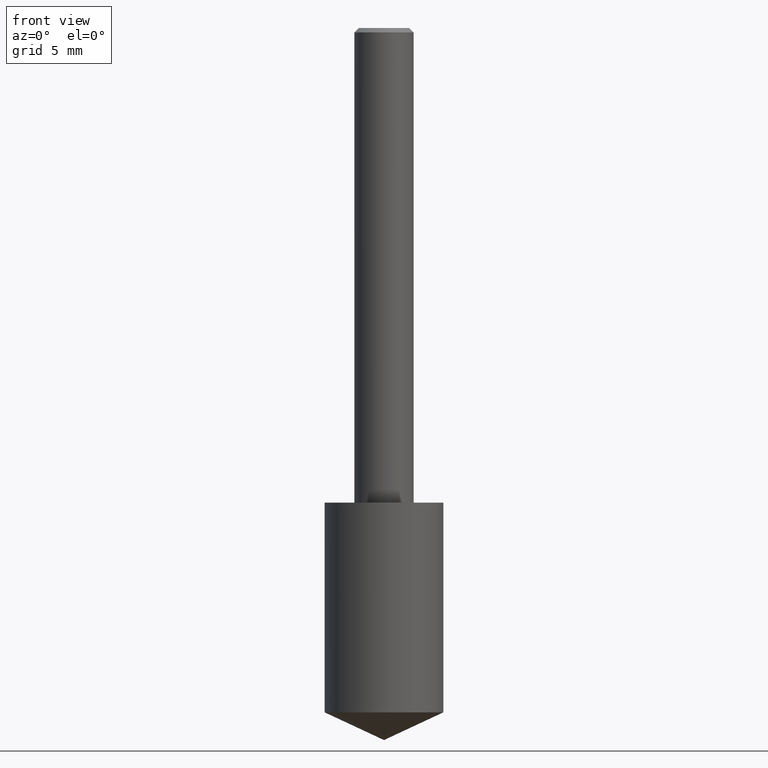
[diagram: clean part render]
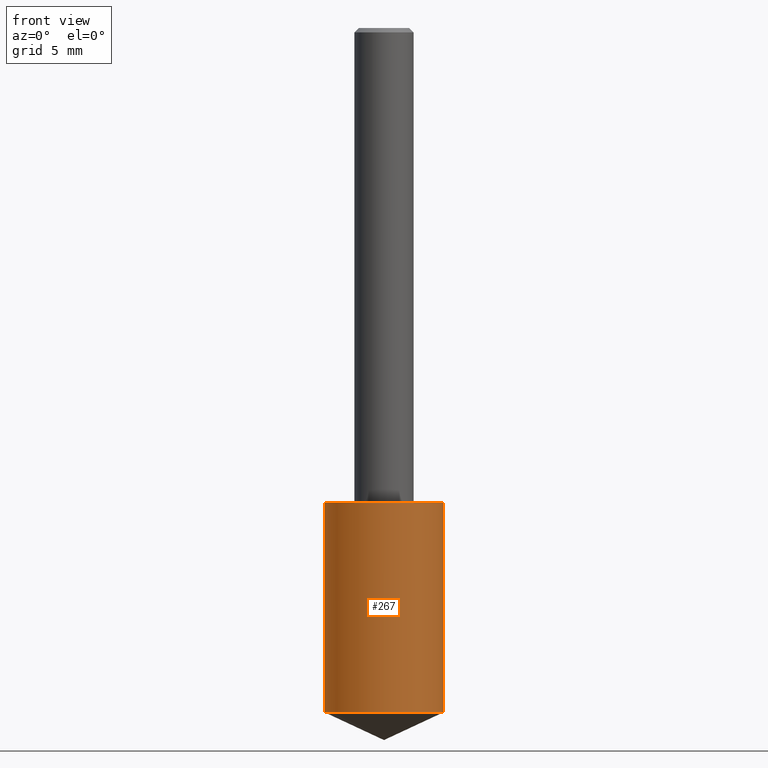
[diagram: same view with one face highlighted and labeled with its STEP entity id]
A machine part, front view. The second image highlights one B-rep face of the part: STEP entity #267.
In plain terms, the highlighted cylindrical surface (partial cylindrical patch) has radius 3.175 mm, axis along (-0, 0, 1).
Its self-contained STEP definition (entity closure, byte-faithful):
#17 = CARTESIAN_POINT ( 'NONE',  ( 0.1250000000000000000, -4.364351673553930105E-15, -1.000000000000000222 ) ) ;
#22 = VERTEX_POINT ( 'NONE', #244 ) ;
#23 = DIRECTION ( 'NONE',  ( -2.445468806185136877E-29, 3.491481338843145188E-15, 1.000000000000000000 ) ) ;
#39 = EDGE_CURVE ( 'NONE', #66, #22, #247, .T. ) ;
#41 = DIRECTION ( 'NONE',  ( 1.000000000000000000, -6.982962677686266711E-15, 0.000000000000000000 ) ) ;
#51 = DIRECTION ( 'NONE',  ( -2.445468806185136597E-29, 3.491481338843145583E-15, 1.000000000000000000 ) ) ;
#53 = CARTESIAN_POINT ( 'NONE',  ( -0.1249999999999999861, -4.145530527738615868E-15, -1.441711542730625517 ) ) ;
#57 = CYLINDRICAL_SURFACE ( 'NONE', #228, 0.1250000000000000000 ) ;
#58 = VECTOR ( 'NONE', #143, 39.37007874015748143 ) ;
#59 = DIRECTION ( 'NONE',  ( 1.000000000000000000, -6.982962677686266711E-15, 0.000000000000000000 ) ) ;
#66 = VERTEX_POINT ( 'NONE', #295 ) ;
#70 = CIRCLE ( 'NONE', #263, 0.1250000000000000000 ) ;
#77 = CARTESIAN_POINT ( 'NONE',  ( 0.1249999999999999861, -5.906579282149524440E-15, -1.441711542730625517 ) ) ;
#80 = EDGE_CURVE ( 'NONE', #111, #243, #70, .T. ) ;
#105 = LINE ( 'NONE', #328, #58 ) ;
#111 = VERTEX_POINT ( 'NONE', #53 ) ;
#119 = ORIENTED_EDGE ( 'NONE', *, *, #80, .T. ) ;
#122 = FACE_OUTER_BOUND ( 'NONE', #306, .T. ) ;
#127 = CARTESIAN_POINT ( 'NONE',  ( 2.445468806185137438E-29, -3.491481338843146371E-15, -1.000000000000000222 ) ) ;
#128 = EDGE_CURVE ( 'NONE', #243, #22, #333, .T. ) ;
#130 = VECTOR ( 'NONE', #23, 39.37007874015748143 ) ;
#135 = ORIENTED_EDGE ( 'NONE', *, *, #39, .F. ) ;
#143 = DIRECTION ( 'NONE',  ( -2.445468806185136877E-29, 3.491481338843145188E-15, 1.000000000000000000 ) ) ;
#150 = ORIENTED_EDGE ( 'NONE', *, *, #205, .F. ) ;
#152 = DIRECTION ( 'NONE',  ( 1.000000000000000000, -6.982962677686270655E-15, 0.000000000000000000 ) ) ;
#184 = DIRECTION ( 'NONE',  ( -2.445468806185136597E-29, 3.491481338843145583E-15, 1.000000000000000000 ) ) ;
#191 = DIRECTION ( 'NONE',  ( -2.445468806185136597E-29, 3.491481338843145583E-15, 1.000000000000000000 ) ) ;
#199 = CARTESIAN_POINT ( 'NONE',  ( 3.525660605264793981E-29, -5.033708947438741890E-15, -1.441711542730625517 ) ) ;
#205 = EDGE_CURVE ( 'NONE', #111, #66, #105, .T. ) ;
#228 = AXIS2_PLACEMENT_3D ( 'NONE', #127, #184, #59 ) ;
#243 = VERTEX_POINT ( 'NONE', #77 ) ;
#244 = CARTESIAN_POINT ( 'NONE',  ( 0.1250000000000000000, -4.364351673553929316E-15, -1.000000000000000222 ) ) ;
#247 = CIRCLE ( 'NONE', #311, 0.1250000000000000000 ) ;
#251 = ORIENTED_EDGE ( 'NONE', *, *, #128, .T. ) ;
#263 = AXIS2_PLACEMENT_3D ( 'NONE', #199, #51, #152 ) ;
#267 = ADVANCED_FACE ( 'NONE', ( #122 ), #57, .T. ) ;
#273 = CARTESIAN_POINT ( 'NONE',  ( 2.445468806185136877E-29, -3.491481338843145977E-15, -1.000000000000000222 ) ) ;
#295 = CARTESIAN_POINT ( 'NONE',  ( -0.1250000000000000000, -3.374416723440817912E-15, -1.000000000000000222 ) ) ;
#306 = EDGE_LOOP ( 'NONE', ( #150, #119, #251, #135 ) ) ;
#311 = AXIS2_PLACEMENT_3D ( 'NONE', #273, #191, #41 ) ;
#328 = CARTESIAN_POINT ( 'NONE',  ( -0.1250000000000000000, -2.603302919143021534E-15, -1.000000000000000222 ) ) ;
#333 = LINE ( 'NONE', #17, #130 ) ;